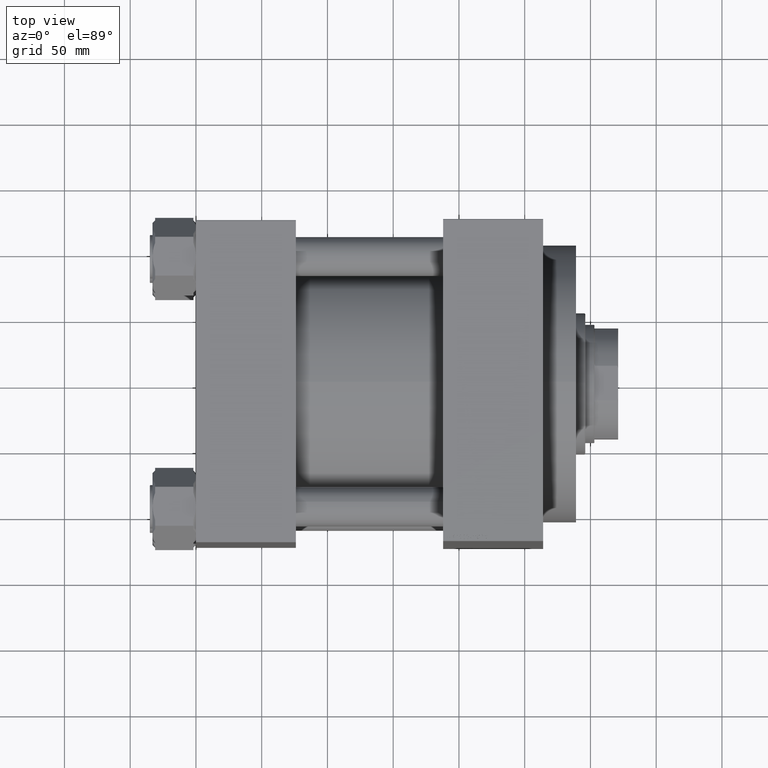
[diagram: clean part render]
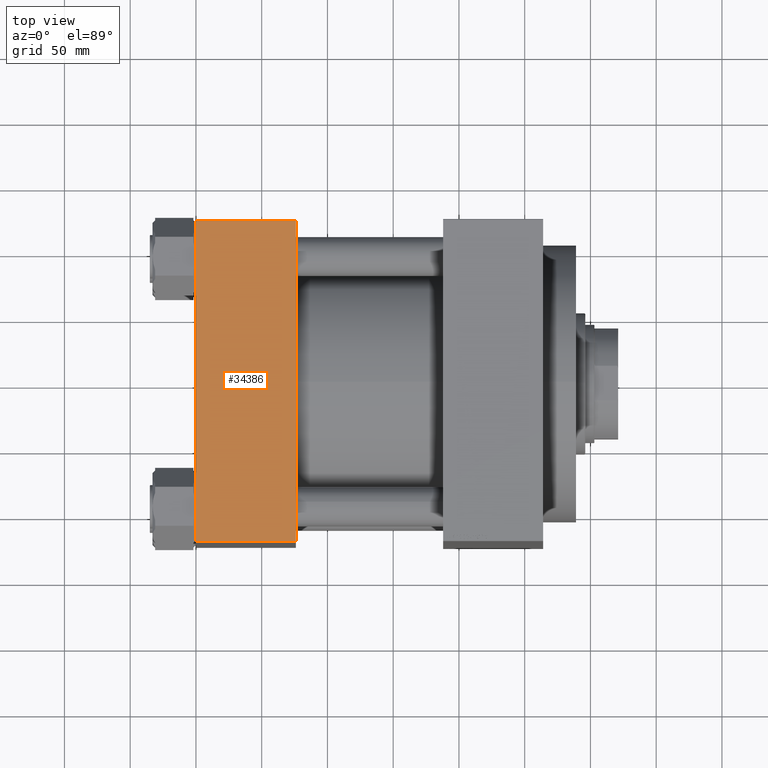
[diagram: same view with one face highlighted and labeled with its STEP entity id]
A machine part, top view. The second image highlights one B-rep face of the part: STEP entity #34386.
In plain terms, the highlighted planar face has unit normal (0, 0, -1).
Its self-contained STEP definition (entity closure, byte-faithful):
#265 = VECTOR ( 'NONE', #12169, 1000.000000000000000 ) ;
#1947 = CARTESIAN_POINT ( 'NONE',  ( 76.00000000000000000, -122.0000000000000284, 122.5000000000000000 ) ) ;
#4615 = VERTEX_POINT ( 'NONE', #34794 ) ;
#5578 = VECTOR ( 'NONE', #45316, 1000.000000000000000 ) ;
#6522 = EDGE_CURVE ( 'NONE', #14691, #6859, #25824, .T. ) ;
#6859 = VERTEX_POINT ( 'NONE', #34437 ) ;
#7156 = EDGE_LOOP ( 'NONE', ( #39556, #13192, #36674, #34202 ) ) ;
#8864 = CARTESIAN_POINT ( 'NONE',  ( 76.00000000000000000, 122.5000000000000568, 122.5000000000000284 ) ) ;
#12169 = DIRECTION ( 'NONE',  ( 0.000000000000000000, -1.000000000000000000, -1.132880637372608740E-16 ) ) ;
#12406 = VECTOR ( 'NONE', #39753, 1000.000000000000000 ) ;
#12634 = VECTOR ( 'NONE', #43639, 1000.000000000000000 ) ;
#13192 = ORIENTED_EDGE ( 'NONE', *, *, #39372, .T. ) ;
#14691 = VERTEX_POINT ( 'NONE', #17239 ) ;
#15375 = PLANE ( 'NONE',  #33993 ) ;
#17239 = CARTESIAN_POINT ( 'NONE',  ( 76.00000000000000000, 122.0000000000000568, 122.5000000000000284 ) ) ;
#18983 = DIRECTION ( 'NONE',  ( 0.000000000000000000, 1.000000000000000000, 1.132880637372608740E-16 ) ) ;
#19998 = LINE ( 'NONE', #1947, #5578 ) ;
#25054 = LINE ( 'NONE', #43114, #12406 ) ;
#25824 = LINE ( 'NONE', #43395, #12634 ) ;
#30705 = LINE ( 'NONE', #45391, #265 ) ;
#32291 = EDGE_CURVE ( 'NONE', #14691, #34733, #25054, .T. ) ;
#32978 = FACE_OUTER_BOUND ( 'NONE', #7156, .T. ) ;
#33922 = DIRECTION ( 'NONE',  ( 0.000000000000000000, 1.132880637372608740E-16, -1.000000000000000000 ) ) ;
#33993 = AXIS2_PLACEMENT_3D ( 'NONE', #8864, #33922, #18983 ) ;
#34202 = ORIENTED_EDGE ( 'NONE', *, *, #6522, .T. ) ;
#34386 = ADVANCED_FACE ( 'NONE', ( #32978 ), #15375, .F. ) ;
#34437 = CARTESIAN_POINT ( 'NONE',  ( 0.000000000000000000, 122.0000000000000568, 122.5000000000000284 ) ) ;
#34733 = VERTEX_POINT ( 'NONE', #36895 ) ;
#34794 = CARTESIAN_POINT ( 'NONE',  ( 0.000000000000000000, -121.9999999999999716, 122.5000000000000000 ) ) ;
#36674 = ORIENTED_EDGE ( 'NONE', *, *, #32291, .F. ) ;
#36895 = CARTESIAN_POINT ( 'NONE',  ( 76.00000000000000000, -121.9999999999999716, 122.5000000000000000 ) ) ;
#39372 = EDGE_CURVE ( 'NONE', #4615, #34733, #19998, .T. ) ;
#39556 = ORIENTED_EDGE ( 'NONE', *, *, #41148, .T. ) ;
#39753 = DIRECTION ( 'NONE',  ( 0.000000000000000000, -1.000000000000000000, -1.132880637372608740E-16 ) ) ;
#41148 = EDGE_CURVE ( 'NONE', #6859, #4615, #30705, .T. ) ;
#43114 = CARTESIAN_POINT ( 'NONE',  ( 76.00000000000000000, 122.5000000000000568, 122.5000000000000284 ) ) ;
#43395 = CARTESIAN_POINT ( 'NONE',  ( 0.000000000000000000, 122.0000000000000568, 122.5000000000000284 ) ) ;
#43639 = DIRECTION ( 'NONE',  ( -1.000000000000000000, 0.000000000000000000, 0.000000000000000000 ) ) ;
#45316 = DIRECTION ( 'NONE',  ( 1.000000000000000000, 0.000000000000000000, 0.000000000000000000 ) ) ;
#45391 = CARTESIAN_POINT ( 'NONE',  ( 0.000000000000000000, 122.5000000000000568, 122.5000000000000284 ) ) ;